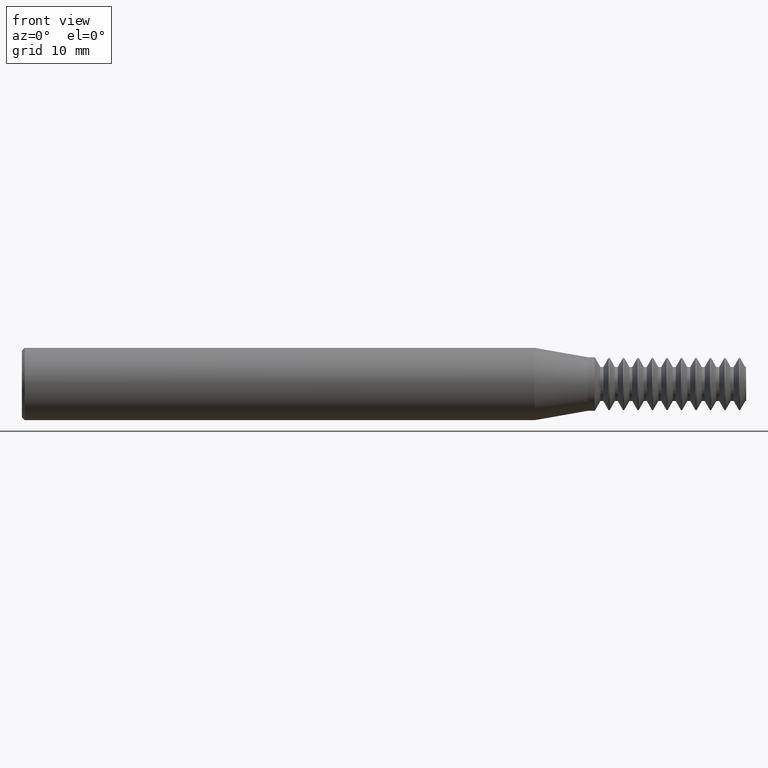
[diagram: clean part render]
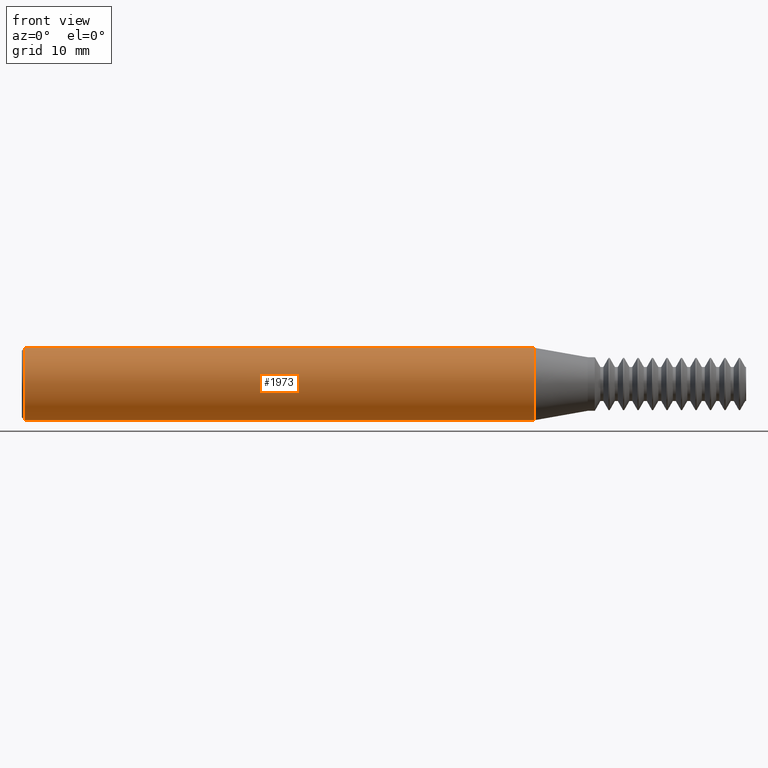
[diagram: same view with one face highlighted and labeled with its STEP entity id]
A machine part, front view. The second image highlights one B-rep face of the part: STEP entity #1973.
In plain terms, the highlighted cylindrical surface (edge-blend (fillet) strip) has radius 3.1712 mm, axis along (1, -0, -0).
Its self-contained STEP definition (entity closure, byte-faithful):
#8 = EDGE_CURVE ( 'NONE', #417, #1095, #44, .T. ) ;
#44 = CIRCLE ( 'NONE', #1680, 0.1248500000000000026 ) ;
#46 = CARTESIAN_POINT ( 'NONE',  ( 1.770000000000000018, 1.528971528735470422E-17, 0.1248500000000000026 ) ) ;
#76 = EDGE_CURVE ( 'NONE', #1095, #842, #955, .T. ) ;
#112 = LINE ( 'NONE', #1998, #621 ) ;
#122 = CIRCLE ( 'NONE', #1799, 0.1248500000000000026 ) ;
#264 = DIRECTION ( 'NONE',  ( 1.000000000000000000, -0.000000000000000000, -0.000000000000000000 ) ) ;
#289 = CARTESIAN_POINT ( 'NONE',  ( 1.770000000000000018, 0.000000000000000000, -0.1248500000000000026 ) ) ;
#353 = CARTESIAN_POINT ( 'NONE',  ( 2.500000000000000000, 0.000000000000000000, -0.1248500000000000026 ) ) ;
#404 = DIRECTION ( 'NONE',  ( 0.000000000000000000, 0.000000000000000000, 1.000000000000000000 ) ) ;
#413 = DIRECTION ( 'NONE',  ( 0.000000000000000000, 0.000000000000000000, -1.000000000000000000 ) ) ;
#417 = VERTEX_POINT ( 'NONE', #2427 ) ;
#422 = FACE_OUTER_BOUND ( 'NONE', #1507, .T. ) ;
#536 = CARTESIAN_POINT ( 'NONE',  ( 0.01000000000000016674, 0.000000000000000000, 0.000000000000000000 ) ) ;
#572 = EDGE_CURVE ( 'NONE', #616, #842, #122, .T. ) ;
#616 = VERTEX_POINT ( 'NONE', #46 ) ;
#621 = VECTOR ( 'NONE', #1586, 39.37007874015748143 ) ;
#695 = ORIENTED_EDGE ( 'NONE', *, *, #76, .T. ) ;
#842 = VERTEX_POINT ( 'NONE', #289 ) ;
#844 = EDGE_CURVE ( 'NONE', #417, #616, #112, .T. ) ;
#874 = ORIENTED_EDGE ( 'NONE', *, *, #844, .F. ) ;
#955 = LINE ( 'NONE', #353, #1442 ) ;
#1007 = CYLINDRICAL_SURFACE ( 'NONE', #1252, 0.1248500000000000026 ) ;
#1095 = VERTEX_POINT ( 'NONE', #1911 ) ;
#1137 = DIRECTION ( 'NONE',  ( 1.000000000000000000, -0.000000000000000000, -0.000000000000000000 ) ) ;
#1152 = ORIENTED_EDGE ( 'NONE', *, *, #572, .F. ) ;
#1252 = AXIS2_PLACEMENT_3D ( 'NONE', #1915, #264, #1929 ) ;
#1385 = ORIENTED_EDGE ( 'NONE', *, *, #8, .T. ) ;
#1442 = VECTOR ( 'NONE', #1137, 39.37007874015748143 ) ;
#1501 = DIRECTION ( 'NONE',  ( 1.000000000000000000, -0.000000000000000000, -0.000000000000000000 ) ) ;
#1507 = EDGE_LOOP ( 'NONE', ( #874, #1385, #695, #1152 ) ) ;
#1548 = CARTESIAN_POINT ( 'NONE',  ( 1.770000000000000018, 0.000000000000000000, 0.000000000000000000 ) ) ;
#1586 = DIRECTION ( 'NONE',  ( 1.000000000000000000, -0.000000000000000000, -0.000000000000000000 ) ) ;
#1680 = AXIS2_PLACEMENT_3D ( 'NONE', #536, #1501, #404 ) ;
#1799 = AXIS2_PLACEMENT_3D ( 'NONE', #1548, #2279, #413 ) ;
#1911 = CARTESIAN_POINT ( 'NONE',  ( 0.01000000000000016674, 0.000000000000000000, -0.1248500000000000026 ) ) ;
#1915 = CARTESIAN_POINT ( 'NONE',  ( 2.500000000000000000, 0.000000000000000000, 0.000000000000000000 ) ) ;
#1929 = DIRECTION ( 'NONE',  ( 0.000000000000000000, 0.000000000000000000, -1.000000000000000000 ) ) ;
#1973 = ADVANCED_FACE ( 'NONE', ( #422 ), #1007, .T. ) ;
#1998 = CARTESIAN_POINT ( 'NONE',  ( 2.500000000000000000, 1.528971528735470422E-17, 0.1248500000000000026 ) ) ;
#2279 = DIRECTION ( 'NONE',  ( 1.000000000000000000, -0.000000000000000000, -0.000000000000000000 ) ) ;
#2427 = CARTESIAN_POINT ( 'NONE',  ( 0.01000000000000016674, 1.528971528735470422E-17, 0.1248500000000000026 ) ) ;